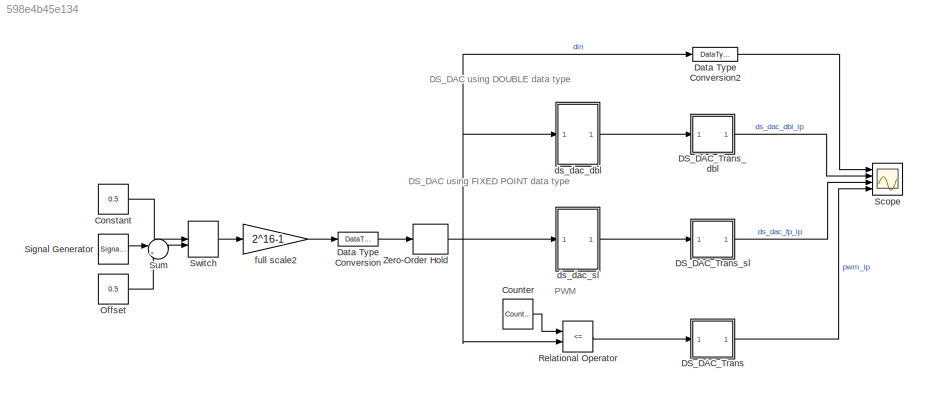
MODEL slx_598e4b45e134
KIND model
CONFIG AbsTol = auto
CONFIG EnableMultiTasking = off
CONFIG FixedStep = T
CONFIG InitFcn = T=1/50e6;\ntau = 0.01e-3;
CONFIG MaxStep = auto
CONFIG MinStep = auto
CONFIG RelTol = 1e-3
CONFIG SampleTimeConstraint = Unconstrained
CONFIG Solver = FixedStepAuto
CONFIG SolverName = FixedStepAuto
CONFIG StartTime = 0.0
CONFIG StopTime = 10e-3
BLOCK [Constant] Constant
  Value = 0.5
BLOCK [Reference] Counter  REF=simulink/Sources/Counter
Free-Running
  Ports = [0, 1]
  SourceBlock = simulink/Sources/Counter\nFree-Running
  SourceProductBaseCode = SL
  SourceProductName = Simulink
  SourceType = Counter Free-Running
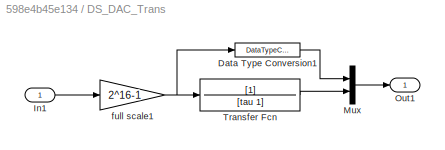
BLOCK [SubSystem] DS_DAC_Trans
  Ports = [1, 1]
  RequestExecContextInheritance = off
  Variant = off
BLOCK [DataTypeConversion] DS_DAC_Trans/Data Type Conversion1
  OutDataTypeStr = double
  RndMeth = Floor
  SaturateOnIntegerOverflow = off
BLOCK [Inport] DS_DAC_Trans/In1
  IconDisplay = Port number
BLOCK [Mux] DS_DAC_Trans/Mux
  DisplayOption = bar
  Inputs = 2
  Ports = [2, 1]
BLOCK [Outport] DS_DAC_Trans/Out1
  IconDisplay = Port number
BLOCK [TransferFcn] DS_DAC_Trans/Transfer Fcn
  Denominator = [tau 1]
BLOCK [Gain] DS_DAC_Trans/full scale1
  Gain = 2^16-1
  OutDataTypeStr = double
  ParamDataTypeStr = Inherit: Inherit via internal rule
  SaturateOnIntegerOverflow = off
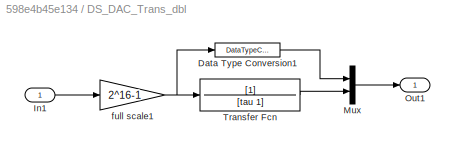
BLOCK [SubSystem] DS_DAC_Trans_dbl
  Ports = [1, 1]
  RequestExecContextInheritance = off
  Variant = off
BLOCK [DataTypeConversion] DS_DAC_Trans_dbl/Data Type Conversion1
  OutDataTypeStr = double
  RndMeth = Floor
  SaturateOnIntegerOverflow = off
BLOCK [Inport] DS_DAC_Trans_dbl/In1
  IconDisplay = Port number
BLOCK [Mux] DS_DAC_Trans_dbl/Mux
  DisplayOption = bar
  Inputs = 2
  Ports = [2, 1]
BLOCK [Outport] DS_DAC_Trans_dbl/Out1
  IconDisplay = Port number
BLOCK [TransferFcn] DS_DAC_Trans_dbl/Transfer Fcn
  Denominator = [tau 1]
BLOCK [Gain] DS_DAC_Trans_dbl/full scale1
  Gain = 2^16-1
  OutDataTypeStr = double
  ParamDataTypeStr = Inherit: Inherit via internal rule
  SaturateOnIntegerOverflow = off
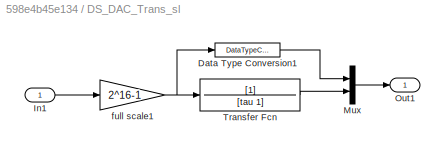
BLOCK [SubSystem] DS_DAC_Trans_sl
  Ports = [1, 1]
  RequestExecContextInheritance = off
  Variant = off
BLOCK [DataTypeConversion] DS_DAC_Trans_sl/Data Type Conversion1
  OutDataTypeStr = double
  RndMeth = Floor
  SaturateOnIntegerOverflow = off
BLOCK [Inport] DS_DAC_Trans_sl/In1
  IconDisplay = Port number
BLOCK [Mux] DS_DAC_Trans_sl/Mux
  DisplayOption = bar
  Inputs = 2
  Ports = [2, 1]
BLOCK [Outport] DS_DAC_Trans_sl/Out1
  IconDisplay = Port number
BLOCK [TransferFcn] DS_DAC_Trans_sl/Transfer Fcn
  Denominator = [tau 1]
BLOCK [Gain] DS_DAC_Trans_sl/full scale1
  Gain = 2^16-1
  OutDataTypeStr = double
  ParamDataTypeStr = Inherit: Inherit via internal rule
  SaturateOnIntegerOverflow = off
BLOCK [DataTypeConversion] Data Type Conversion
  OutDataTypeStr = uint16
  RndMeth = Floor
  SaturateOnIntegerOverflow = off
BLOCK [DataTypeConversion] Data Type Conversion2
  OutDataTypeStr = double
  RndMeth = Floor
  SaturateOnIntegerOverflow = off
BLOCK [Constant] Offset
  Value = 0.5
BLOCK [RelationalOperator] Relational Operator
  InputSameDT = off
  Operator = <=
  OutDataTypeStr = boolean
  Ports = [2, 1]
  RndMeth = Simplest
BLOCK [Scope] Scope
  NumInputPorts = 4
  Ports = [4]
  ScopeSpecificationString = Simulink.scopes.TimeScopeBlockCfg('CurrentConfiguration', extmgr.ConfigurationSet(extmgr.Configuration('Core','General UI',true),extmgr.Configuration('Core','Source UI',true),extmgr.Configuration('Sources','WiredSimulink',true),extmgr.Configuration('Visuals','Time Domain',true,'SerializedDisplays',{struct('MinYLimReal','-8191.875','MaxYLimReal','73726.875','YLabelReal','','MinYLimMag','  0.00000',...<+3921ch>
BLOCK [SignalGenerator] Signal Generator
  Amplitude = 0.5
  Frequency = 100
  Ports = [0, 1]
BLOCK [Sum] Sum
  IconShape = round
  InputSameDT = off
  Inputs = |++
  OutDataTypeStr = Inherit: Inherit via internal rule
  Ports = [2, 1]
  SaturateOnIntegerOverflow = off
BLOCK [ManualSwitch] Switch
  CurrentSetting = 0
BLOCK [ZeroOrderHold] Zero-Order Hold
  SampleTime = T
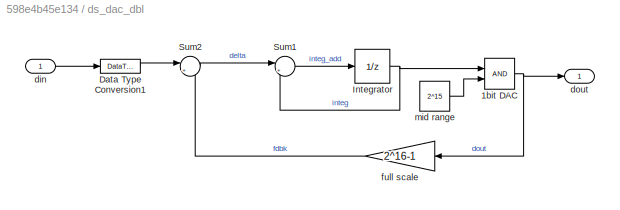
BLOCK [SubSystem] ds_dac_dbl
  Ports = [1, 1]
  RequestExecContextInheritance = off
  Variant = off
BLOCK [RelationalOperator] ds_dac_dbl/1bit DAC
  InputSameDT = off
  OutDataTypeStr = boolean
  Ports = [2, 1]
  RndMeth = Simplest
BLOCK [DataTypeConversion] ds_dac_dbl/Data Type Conversion1
  OutDataTypeStr = double
  RndMeth = Floor
  SaturateOnIntegerOverflow = off
BLOCK [UnitDelay] ds_dac_dbl/Integrator
  InputProcessing = Elements as channels (sample based)
  SampleTime = T
BLOCK [Sum] ds_dac_dbl/Sum1
  IconShape = round
  InputSameDT = off
  Inputs = |++
  OutDataTypeStr = Inherit: Inherit via internal rule
  Ports = [2, 1]
  SaturateOnIntegerOverflow = off
BLOCK [Sum] ds_dac_dbl/Sum2
  IconShape = round
  InputSameDT = off
  Inputs = |+-
  OutDataTypeStr = Inherit: Inherit via internal rule
  Ports = [2, 1]
  SaturateOnIntegerOverflow = off
BLOCK [Inport] ds_dac_dbl/din
  IconDisplay = Port number
BLOCK [Outport] ds_dac_dbl/dout
  IconDisplay = Port number
BLOCK [Gain] ds_dac_dbl/full scale
  Gain = 2^16-1
  OutDataTypeStr = double
  ParamDataTypeStr = Inherit: Inherit via internal rule
  SaturateOnIntegerOverflow = off
BLOCK [Constant] ds_dac_dbl/mid range
  OutDataTypeStr = double
  SampleTime = T
  Value = 2^15
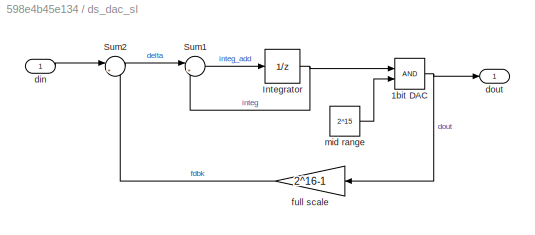
BLOCK [SubSystem] ds_dac_sl
  Ports = [1, 1]
  RequestExecContextInheritance = off
  Variant = off
BLOCK [RelationalOperator] ds_dac_sl/1bit DAC
  InputSameDT = off
  OutDataTypeStr = boolean
  Ports = [2, 1]
  RndMeth = Simplest
BLOCK [UnitDelay] ds_dac_sl/Integrator
  InputProcessing = Elements as channels (sample based)
  SampleTime = T
BLOCK [Sum] ds_dac_sl/Sum1
  IconShape = round
  InputSameDT = off
  Inputs = |++
  OutDataTypeStr = fixdt(1,18,0)
  Ports = [2, 1]
  SaturateOnIntegerOverflow = off
BLOCK [Sum] ds_dac_sl/Sum2
  IconShape = round
  InputSameDT = off
  Inputs = |+-
  OutDataTypeStr = fixdt(1,17,0)
  Ports = [2, 1]
  SaturateOnIntegerOverflow = off
BLOCK [Inport] ds_dac_sl/din
  IconDisplay = Port number
BLOCK [Outport] ds_dac_sl/dout
  IconDisplay = Port number
BLOCK [Gain] ds_dac_sl/full scale
  Gain = 2^16-1
  OutDataTypeStr = uint16
  ParamDataTypeStr = Inherit: Inherit via internal rule
  SaturateOnIntegerOverflow = off
BLOCK [Constant] ds_dac_sl/mid range
  OutDataTypeStr = fixdt(1,18,0)
  SampleTime = T
  Value = 2^15
BLOCK [Gain] full scale2
  Gain = 2^16-1
  OutDataTypeStr = Inherit: Inherit via internal rule
  ParamDataTypeStr = Inherit: Inherit via internal rule
  SaturateOnIntegerOverflow = off
ANNOTATION (root): DS_DAC using DOUBLE data type
ANNOTATION (root): DS_DAC using FIXED POINT data type
ANNOTATION (root): PWM
LINE Constant:1 -> Switch:1
LINE Counter:1 -> Relational Operator:1
LINE DS_DAC_Trans/Data Type Conversion1:1 -> DS_DAC_Trans/Mux:1
LINE DS_DAC_Trans/In1:1 -> DS_DAC_Trans/full scale1:1
LINE DS_DAC_Trans/Mux:1 -> DS_DAC_Trans/Out1:1
LINE DS_DAC_Trans/Transfer Fcn:1 -> DS_DAC_Trans/Mux:2
NET DS_DAC_Trans/full scale1:1 -> DS_DAC_Trans/Data Type Conversion1:1, DS_DAC_Trans/Transfer Fcn:1
LINE DS_DAC_Trans:1 -> Scope:4
LINE DS_DAC_Trans_dbl/Data Type Conversion1:1 -> DS_DAC_Trans_dbl/Mux:1
LINE DS_DAC_Trans_dbl/In1:1 -> DS_DAC_Trans_dbl/full scale1:1
LINE DS_DAC_Trans_dbl/Mux:1 -> DS_DAC_Trans_dbl/Out1:1
LINE DS_DAC_Trans_dbl/Transfer Fcn:1 -> DS_DAC_Trans_dbl/Mux:2
NET DS_DAC_Trans_dbl/full scale1:1 -> DS_DAC_Trans_dbl/Data Type Conversion1:1, DS_DAC_Trans_dbl/Transfer Fcn:1
LINE DS_DAC_Trans_dbl:1 -> Scope:2
LINE DS_DAC_Trans_sl/Data Type Conversion1:1 -> DS_DAC_Trans_sl/Mux:1
LINE DS_DAC_Trans_sl/In1:1 -> DS_DAC_Trans_sl/full scale1:1
LINE DS_DAC_Trans_sl/Mux:1 -> DS_DAC_Trans_sl/Out1:1
LINE DS_DAC_Trans_sl/Transfer Fcn:1 -> DS_DAC_Trans_sl/Mux:2
NET DS_DAC_Trans_sl/full scale1:1 -> DS_DAC_Trans_sl/Data Type Conversion1:1, DS_DAC_Trans_sl/Transfer Fcn:1
LINE DS_DAC_Trans_sl:1 -> Scope:3
LINE Data Type Conversion2:1 -> Scope:1
LINE Data Type Conversion:1 -> Zero-Order Hold:1
LINE Offset:1 -> Sum:2
LINE Relational Operator:1 -> DS_DAC_Trans:1
LINE Signal Generator:1 -> Sum:1
LINE Sum:1 -> Switch:2
LINE Switch:1 -> full scale2:1
NET Zero-Order Hold:1 -> Data Type Conversion2:1, Relational Operator:2, ds_dac_dbl:1, ds_dac_sl:1
NET ds_dac_dbl/1bit DAC:1 -> ds_dac_dbl/dout:1, ds_dac_dbl/full scale:1
LINE ds_dac_dbl/Data Type Conversion1:1 -> ds_dac_dbl/Sum2:1
NET ds_dac_dbl/Integrator:1 -> ds_dac_dbl/1bit DAC:1, ds_dac_dbl/Sum1:2
LINE ds_dac_dbl/Sum1:1 -> ds_dac_dbl/Integrator:1
LINE ds_dac_dbl/Sum2:1 -> ds_dac_dbl/Sum1:1
LINE ds_dac_dbl/din:1 -> ds_dac_dbl/Data Type Conversion1:1
LINE ds_dac_dbl/full scale:1 -> ds_dac_dbl/Sum2:2
LINE ds_dac_dbl/mid range:1 -> ds_dac_dbl/1bit DAC:2
LINE ds_dac_dbl:1 -> DS_DAC_Trans_dbl:1
NET ds_dac_sl/1bit DAC:1 -> ds_dac_sl/dout:1, ds_dac_sl/full scale:1
NET ds_dac_sl/Integrator:1 -> ds_dac_sl/1bit DAC:1, ds_dac_sl/Sum1:2
LINE ds_dac_sl/Sum1:1 -> ds_dac_sl/Integrator:1
LINE ds_dac_sl/Sum2:1 -> ds_dac_sl/Sum1:1
LINE ds_dac_sl/din:1 -> ds_dac_sl/Sum2:1
LINE ds_dac_sl/full scale:1 -> ds_dac_sl/Sum2:2
LINE ds_dac_sl/mid range:1 -> ds_dac_sl/1bit DAC:2
LINE ds_dac_sl:1 -> DS_DAC_Trans_sl:1
LINE full scale2:1 -> Data Type Conversion:1
note: NET lines group one-source signal fan-out (src -> all destinations, sorted); 1:1 wires keep LINE
